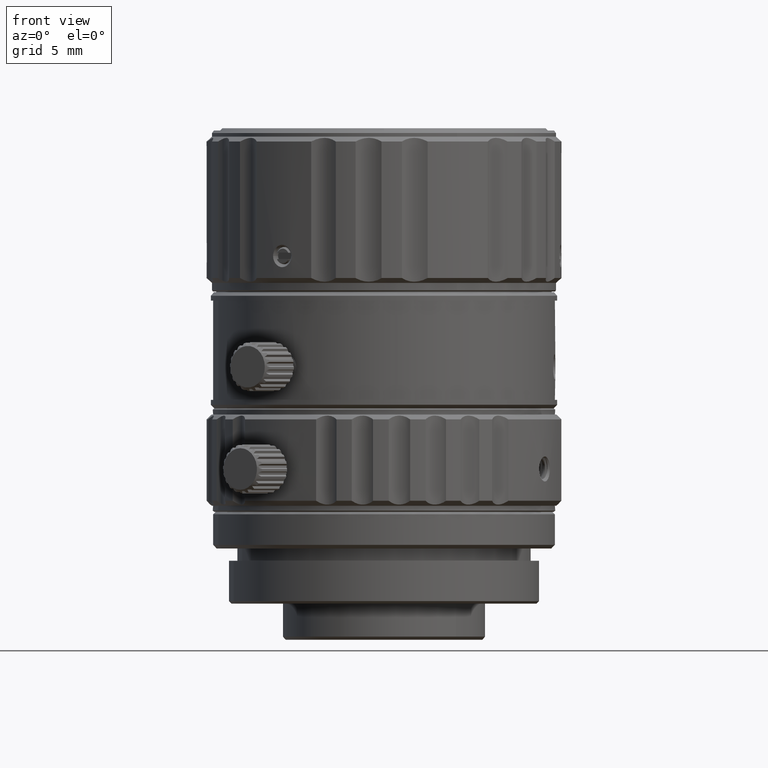
[diagram: clean part render]
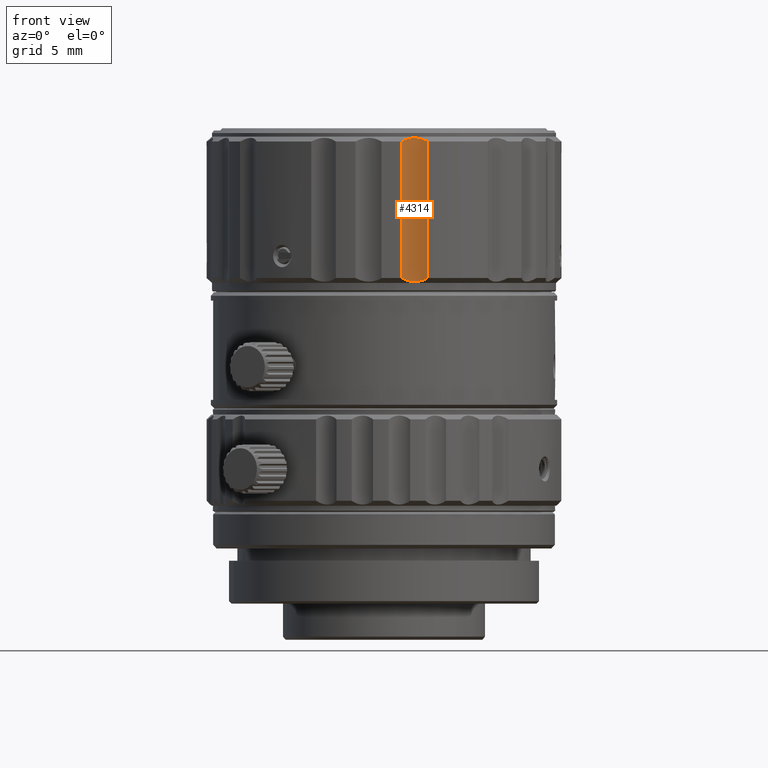
[diagram: same view with one face highlighted and labeled with its STEP entity id]
A machine part, front view. The second image highlights one B-rep face of the part: STEP entity #4314.
In plain terms, the highlighted cylindrical surface (edge-blend (fillet) strip) has radius 2.3 mm, axis along (0, 0, -1).
Its self-contained STEP definition (entity closure, byte-faithful):
#52 = CARTESIAN_POINT ( 'NONE',  ( 1.463269386038090092, -14.42597805016870005, 15.88000004966100320 ) ) ;
#184 = EDGE_CURVE ( 'NONE', #29716, #27085, #44094, .T. ) ;
#1381 = CARTESIAN_POINT ( 'NONE',  ( 2.465631054574779935, -13.98203447204170047, 15.57740614063100004 ) ) ;
#2419 = DIRECTION ( 'NONE',  ( -3.863740942196289669E-14, -1.035286265224440106E-14, -1.000000000000000000 ) ) ;
#2864 = CARTESIAN_POINT ( 'NONE',  ( 2.865194931503250331, -16.24932792469710208, 15.48000004966099930 ) ) ;
#3502 = EDGE_CURVE ( 'NONE', #29716, #23551, #38817, .T. ) ;
#4314 = ADVANCED_FACE ( 'NONE', ( #22186 ), #31859, .F. ) ;
#4521 = CARTESIAN_POINT ( 'NONE',  ( 3.558951636049550338, -14.05645272649299926, 15.88000004966100320 ) ) ;
#6138 = CARTESIAN_POINT ( 'NONE',  ( 1.516487781608840013, -14.38505983184609960, 27.06533884071810192 ) ) ;
#11061 = CARTESIAN_POINT ( 'NONE',  ( 2.996657763352129855, -13.95069020774559831, 15.64854788788099960 ) ) ;
#11208 = VERTEX_POINT ( 'NONE', #4521 ) ;
#11379 = CARTESIAN_POINT ( 'NONE',  ( 2.123542346672609771, -14.06975271826060059, 15.60874186374100070 ) ) ;
#11903 = CARTESIAN_POINT ( 'NONE',  ( 2.817043101101329938, -13.94752804550010161, 27.30119175380030327 ) ) ;
#16823 = CARTESIAN_POINT ( 'NONE',  ( 1.516484870605369961, -14.38506207003359982, 15.84466319161099968 ) ) ;
#17370 = DIRECTION ( 'NONE',  ( 0.000000000000000000, 0.000000000000000000, -1.000000000000000000 ) ) ;
#20722 = CARTESIAN_POINT ( 'NONE',  ( 3.180331034505259780, -13.96846651742900036, 15.70558377756100121 ) ) ;
#20933 = CARTESIAN_POINT ( 'NONE',  ( 1.463269386038090092, -14.42597805016870005, 27.03000004966110126 ) ) ;
#21257 = CARTESIAN_POINT ( 'NONE',  ( 2.465697167007539825, -13.98202249000710040, 27.33259433037600061 ) ) ;
#21761 = LINE ( 'NONE', #56551, #23249 ) ;
#22186 = FACE_OUTER_BOUND ( 'NONE', #38249, .T. ) ;
#23249 = VECTOR ( 'NONE', #2419, 1000.000000000000000 ) ;
#23301 = B_SPLINE_CURVE_WITH_KNOTS ( 'NONE', 3,
 ( #36158, #16823, #55516, #50347, #41295, #11379, #45509, #1381, #36463, #30710, #11061, #20722, #31028, #26178, #31335 ),
 .UNSPECIFIED., .F., .F.,
 ( 4, 1, 1, 1, 1, 1, 1, 1, 1, 1, 1, 1, 4 ),
 ( 0.000000000000000000, 0.08333333333333001192, 0.1666666666667000196, 0.2500000000000000000, 0.3333333333333000081, 0.4166666666666999919, 0.5000000000000000000, 0.5833333333333000637, 0.6666666666667000474, 0.7500000000000000000, 0.8333333333333000637, 0.9166666666667000474, 1.000000000000000000 ),
 .UNSPECIFIED. ) ;
#23551 = VERTEX_POINT ( 'NONE', #52 ) ;
#23683 = CARTESIAN_POINT ( 'NONE',  ( 1.463269386038090092, -14.42597805016870005, 27.03000004966110126 ) ) ;
#25460 = CARTESIAN_POINT ( 'NONE',  ( 2.123547725228720040, -14.06975065069730135, 27.30125950675250124 ) ) ;
#26088 = CARTESIAN_POINT ( 'NONE',  ( 1.624729718265580214, -14.30927995533449959, 27.12912844916990096 ) ) ;
#26178 = CARTESIAN_POINT ( 'NONE',  ( 3.494946549054310125, -14.03620353116149921, 15.84466054166100157 ) ) ;
#26405 = CARTESIAN_POINT ( 'NONE',  ( 3.180345071095590281, -13.96846888840100043, 27.20441083566009866 ) ) ;
#26769 = EDGE_CURVE ( 'NONE', #27085, #11208, #21761, .T. ) ;
#27085 = VERTEX_POINT ( 'NONE', #50364 ) ;
#27808 = ORIENTED_EDGE ( 'NONE', *, *, #3502, .T. ) ;
#29509 = CARTESIAN_POINT ( 'NONE',  ( 1.463269386038090092, -14.42597805016870005, 27.03000004966110126 ) ) ;
#29716 = VERTEX_POINT ( 'NONE', #29509 ) ;
#30710 = CARTESIAN_POINT ( 'NONE',  ( 2.816972187216650436, -13.94752988156639972, 15.60879615946099896 ) ) ;
#31028 = CARTESIAN_POINT ( 'NONE',  ( 3.367312149250609732, -14.00201872666420044, 15.78087502247100105 ) ) ;
#31242 = CARTESIAN_POINT ( 'NONE',  ( 3.558951636048479639, -14.05645272649319999, 27.03000004966099823 ) ) ;
#31335 = CARTESIAN_POINT ( 'NONE',  ( 3.558951636049550338, -14.05645272649299926, 15.88000004966100320 ) ) ;
#31556 = CARTESIAN_POINT ( 'NONE',  ( 3.367307407536240138, -14.00201799704920091, 27.12912685308739924 ) ) ;
#31859 = CYLINDRICAL_SURFACE ( 'NONE', #41018, 2.300000000000000266 ) ;
#35426 = CARTESIAN_POINT ( 'NONE',  ( 2.639755893918890095, -13.95813749078349986, 27.32480362291340015 ) ) ;
#36158 = CARTESIAN_POINT ( 'NONE',  ( 1.463269386038090092, -14.42597805016870005, 15.88000004966100320 ) ) ;
#36373 = CARTESIAN_POINT ( 'NONE',  ( 1.789110241491669973, -14.21372572765699971, 27.20447365987769928 ) ) ;
#36463 = CARTESIAN_POINT ( 'NONE',  ( 2.639725477206599891, -13.95814039126960004, 15.58519365595100048 ) ) ;
#38249 = EDGE_LOOP ( 'NONE', ( #58042, #42607, #58799, #27808 ) ) ;
#38817 = LINE ( 'NONE', #23683, #54307 ) ;
#41018 = AXIS2_PLACEMENT_3D ( 'NONE', #2864, #17370, #56353 ) ;
#41211 = CARTESIAN_POINT ( 'NONE',  ( 2.293528648189489871, -14.01917302546280020, 27.32481928591050035 ) ) ;
#41295 = CARTESIAN_POINT ( 'NONE',  ( 1.955527459000320212, -14.13425352137060109, 15.64852960356099842 ) ) ;
#42607 = ORIENTED_EDGE ( 'NONE', *, *, #26769, .F. ) ;
#44094 = B_SPLINE_CURVE_WITH_KNOTS ( 'NONE', 3,
 ( #20933, #6138, #26088, #36373, #55731, #25460, #41211, #21257, #35426, #11903, #51198, #26405, #31556, #50874, #31242 ),
 .UNSPECIFIED., .F., .F.,
 ( 4, 1, 1, 1, 1, 1, 1, 1, 1, 1, 1, 1, 4 ),
 ( 0.000000000000000000, 0.08333333333333001192, 0.1666666666667000196, 0.2500000000000000000, 0.3333333333333000081, 0.4166666666666999919, 0.5000000000000000000, 0.5833333333333000637, 0.6666666666667000474, 0.7500000000000000000, 0.8333333333333000637, 0.9166666666667000474, 1.000000000000000000 ),
 .UNSPECIFIED. ) ;
#45509 = CARTESIAN_POINT ( 'NONE',  ( 2.293527788450649751, -14.01917431666629987, 15.58518211887099980 ) ) ;
#49057 = EDGE_CURVE ( 'NONE', #23551, #11208, #23301, .T. ) ;
#50347 = CARTESIAN_POINT ( 'NONE',  ( 1.789084793626089853, -14.21373849874350093, 15.70553584559099924 ) ) ;
#50364 = CARTESIAN_POINT ( 'NONE',  ( 3.558951636048479639, -14.05645272649319999, 27.03000004966099823 ) ) ;
#50874 = CARTESIAN_POINT ( 'NONE',  ( 3.494943727080479956, -14.03620263838139870, 27.06534111577660084 ) ) ;
#51198 = CARTESIAN_POINT ( 'NONE',  ( 2.996691330509160256, -13.95069322801939826, 27.26144203551750067 ) ) ;
#54307 = VECTOR ( 'NONE', #58146, 1000.000000000000000 ) ;
#55516 = CARTESIAN_POINT ( 'NONE',  ( 1.624724083765620053, -14.30928440826020065, 15.78087554074100041 ) ) ;
#55731 = CARTESIAN_POINT ( 'NONE',  ( 1.955510220480090045, -14.13426133426590070, 27.26146506818020043 ) ) ;
#56353 = DIRECTION ( 'NONE',  ( 0.9848077530122139045, 0.1736481776668974686, 0.000000000000000000 ) ) ;
#56551 = CARTESIAN_POINT ( 'NONE',  ( 3.558951636050029954, -14.05645272649279853, 27.03000004966129666 ) ) ;
#58042 = ORIENTED_EDGE ( 'NONE', *, *, #49057, .T. ) ;
#58146 = DIRECTION ( 'NONE',  ( 0.000000000000000000, 0.000000000000000000, -1.000000000000000000 ) ) ;
#58799 = ORIENTED_EDGE ( 'NONE', *, *, #184, .F. ) ;